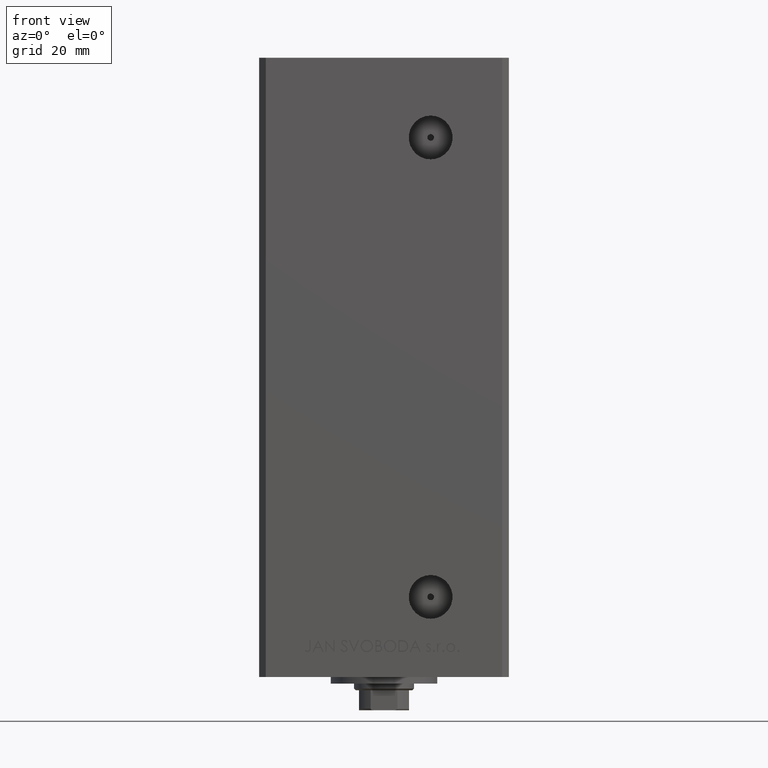
[diagram: clean part render]
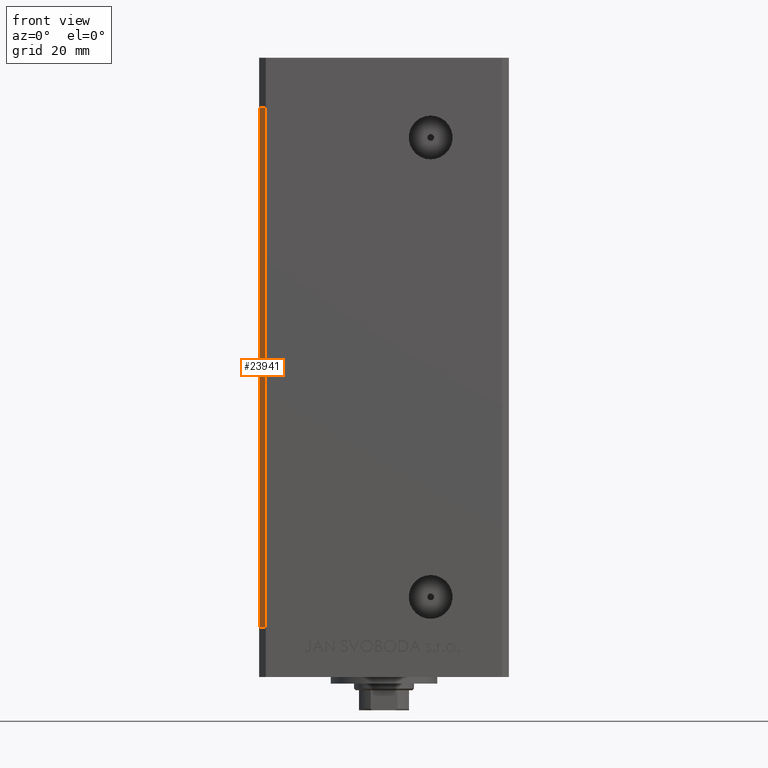
[diagram: same view with one face highlighted and labeled with its STEP entity id]
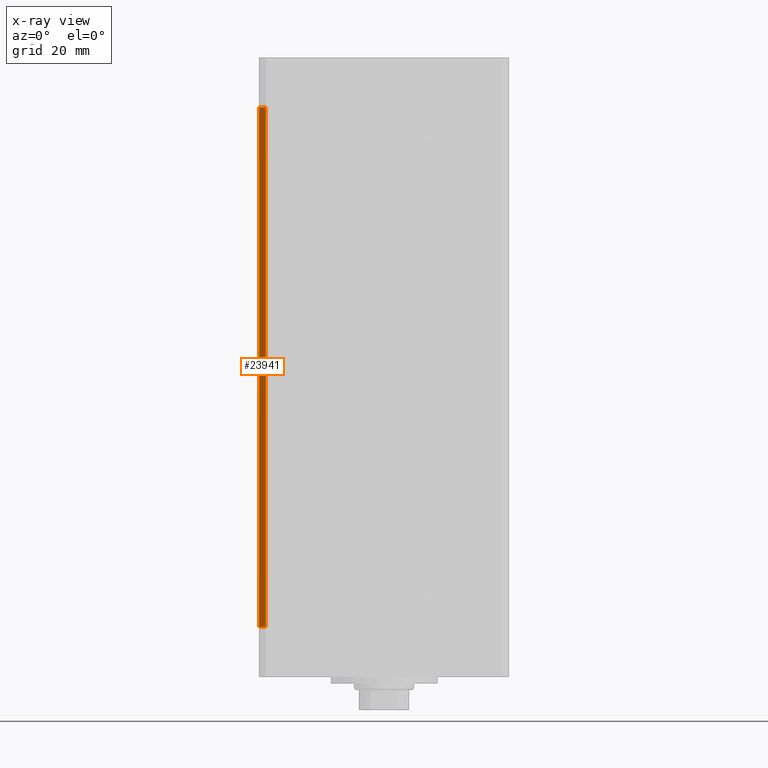
[diagram: x-ray of the same camera — body ghosted, the highlighted face saturated]
A machine part, front view. The second image highlights one B-rep face of the part: STEP entity #23941.
The next image is the same camera in x-ray: the body ghosted, the highlighted face saturated — about 0% of this face is hidden behind the body in this view.
In plain terms, the highlighted planar face has unit normal (0.7071, 0.7071, 0).
Its self-contained STEP definition (entity closure, byte-faithful):
#770 = VERTEX_POINT ( 'NONE', #24869 ) ;
#3165 = DIRECTION ( 'NONE',  ( 0.7071067811865475727, 0.7071067811865475727, -0.000000000000000000 ) ) ;
#5209 = AXIS2_PLACEMENT_3D ( 'NONE', #22263, #3165, #49136 ) ;
#5997 = CARTESIAN_POINT ( 'NONE',  ( -37.49999999999999289, -30.50000000000000000, 156.0000000000000000 ) ) ;
#6090 = ORIENTED_EDGE ( 'NONE', *, *, #25207, .T. ) ;
#6815 = LINE ( 'NONE', #17884, #46965 ) ;
#6927 = PLANE ( 'NONE',  #5209 ) ;
#7072 = VERTEX_POINT ( 'NONE', #48768 ) ;
#11401 = CARTESIAN_POINT ( 'NONE',  ( -37.49999999999999289, -30.50000000000000000, 156.0000000000000000 ) ) ;
#12498 = ORIENTED_EDGE ( 'NONE', *, *, #22315, .T. ) ;
#12766 = LINE ( 'NONE', #5997, #22796 ) ;
#13452 = EDGE_LOOP ( 'NONE', ( #6090, #47390, #13597, #12498 ) ) ;
#13597 = ORIENTED_EDGE ( 'NONE', *, *, #49665, .F. ) ;
#13933 = CARTESIAN_POINT ( 'NONE',  ( -35.49999999999999289, -32.50000000000000000, 156.0000000000000000 ) ) ;
#14458 = FACE_OUTER_BOUND ( 'NONE', #13452, .T. ) ;
#14680 = LINE ( 'NONE', #11401, #18637 ) ;
#17884 = CARTESIAN_POINT ( 'NONE',  ( -37.49999999999999289, -30.50000000000000000, 0.000000000000000000 ) ) ;
#18637 = VECTOR ( 'NONE', #30032, 1000.000000000000114 ) ;
#20590 = DIRECTION ( 'NONE',  ( -0.000000000000000000, -0.000000000000000000, -1.000000000000000000 ) ) ;
#22263 = CARTESIAN_POINT ( 'NONE',  ( -37.49999999999999289, -30.50000000000000000, 156.0000000000000000 ) ) ;
#22315 = EDGE_CURVE ( 'NONE', #7072, #770, #12766, .T. ) ;
#22796 = VECTOR ( 'NONE', #20590, 1000.000000000000000 ) ;
#23941 = ADVANCED_FACE ( 'NONE', ( #14458 ), #6927, .F. ) ;
#24869 = CARTESIAN_POINT ( 'NONE',  ( -37.49999999999999289, -30.50000000000000000, 0.000000000000000000 ) ) ;
#25207 = EDGE_CURVE ( 'NONE', #770, #32933, #6815, .T. ) ;
#30032 = DIRECTION ( 'NONE',  ( 0.7071067811865474617, -0.7071067811865474617, 0.000000000000000000 ) ) ;
#32912 = CARTESIAN_POINT ( 'NONE',  ( -35.49999999999999289, -32.50000000000000000, 0.000000000000000000 ) ) ;
#32933 = VERTEX_POINT ( 'NONE', #32912 ) ;
#34386 = VECTOR ( 'NONE', #43837, 1000.000000000000000 ) ;
#37228 = EDGE_CURVE ( 'NONE', #46671, #32933, #43597, .T. ) ;
#40321 = CARTESIAN_POINT ( 'NONE',  ( -35.49999999999999289, -32.50000000000000000, 156.0000000000000000 ) ) ;
#41484 = DIRECTION ( 'NONE',  ( 0.7071067811865474617, -0.7071067811865474617, 0.000000000000000000 ) ) ;
#43597 = LINE ( 'NONE', #40321, #34386 ) ;
#43837 = DIRECTION ( 'NONE',  ( -0.000000000000000000, -0.000000000000000000, -1.000000000000000000 ) ) ;
#46671 = VERTEX_POINT ( 'NONE', #13933 ) ;
#46965 = VECTOR ( 'NONE', #41484, 1000.000000000000114 ) ;
#47390 = ORIENTED_EDGE ( 'NONE', *, *, #37228, .F. ) ;
#48768 = CARTESIAN_POINT ( 'NONE',  ( -37.49999999999999289, -30.50000000000000000, 156.0000000000000000 ) ) ;
#49136 = DIRECTION ( 'NONE',  ( -0.7071067811865474617, 0.7071067811865474617, 0.000000000000000000 ) ) ;
#49665 = EDGE_CURVE ( 'NONE', #7072, #46671, #14680, .T. ) ;